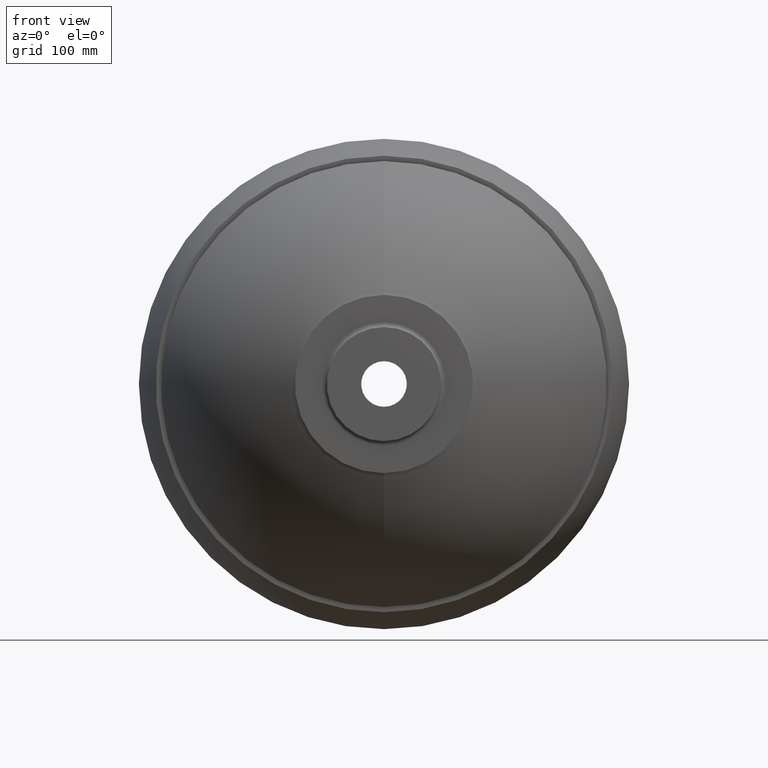
[diagram: clean part render]
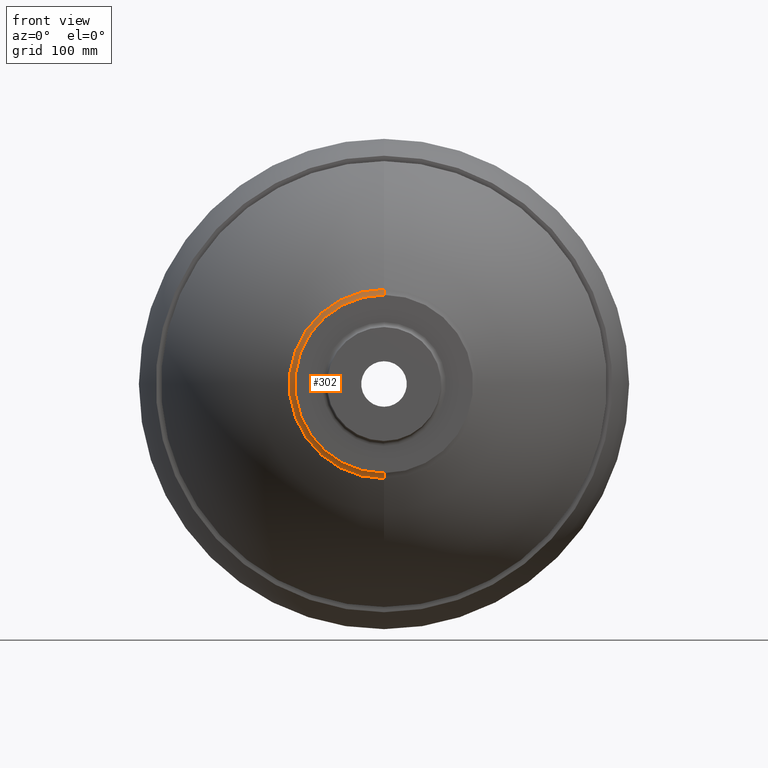
[diagram: same view with one face highlighted and labeled with its STEP entity id]
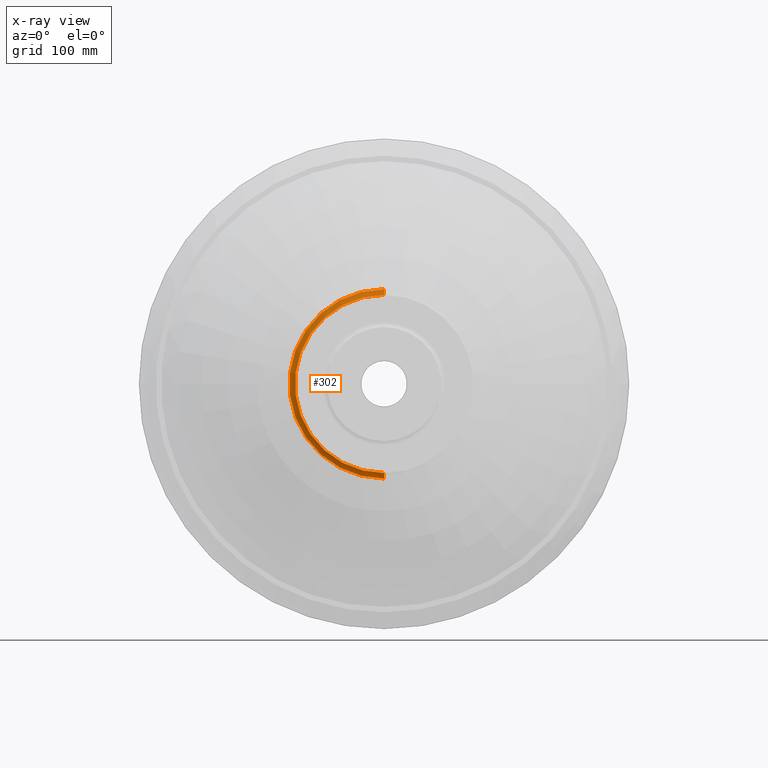
[diagram: x-ray of the same camera — body ghosted, the highlighted face saturated]
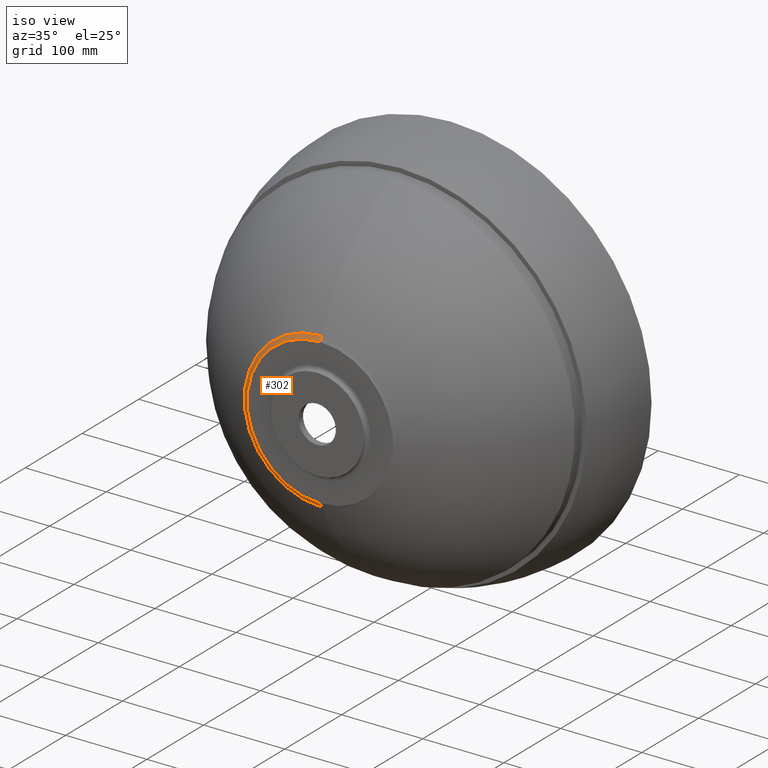
[diagram: same view with one face highlighted and labeled with its STEP entity id]
A machine part, front view. The second image highlights one B-rep face of the part: STEP entity #302.
The next image is the same camera in x-ray: the body ghosted, the highlighted face saturated — about 0% of this face is hidden behind the body in this view.
A second angle (iso view) of the same face is appended — the face is thin or edge-on in the first view.
In plain terms, the highlighted toroidal blend (fillet) surface has major radius 106.974 mm and minor (blend) radius 30 mm.
Its self-contained STEP definition (entity closure, byte-faithful):
#55 = VERTEX_POINT ( 'NONE', #528 ) ;
#75 = FACE_OUTER_BOUND ( 'NONE', #473, .T. ) ;
#76 = VERTEX_POINT ( 'NONE', #443 ) ;
#108 = EDGE_CURVE ( 'NONE', #196, #76, #142, .T. ) ;
#120 = DIRECTION ( 'NONE',  ( 0.0000000000000000000, 0.0000000000000000000, -1.000000000000000000 ) ) ;
#121 = DIRECTION ( 'NONE',  ( -0.0000000000000000000, -1.000000000000000000, -0.0000000000000000000 ) ) ;
#124 = CARTESIAN_POINT ( 'NONE',  ( 0.0000000000000000000, 8.000000000000062200, 0.0000000000000000000 ) ) ;
#142 = CIRCLE ( 'NONE', #160, 30.00000000000000000 ) ;
#145 = VERTEX_POINT ( 'NONE', #312 ) ;
#150 = EDGE_CURVE ( 'NONE', #145, #55, #388, .T. ) ;
#157 = ORIENTED_EDGE ( 'NONE', *, *, #150, .F. ) ;
#160 = AXIS2_PLACEMENT_3D ( 'NONE', #254, #402, #253 ) ;
#196 = VERTEX_POINT ( 'NONE', #492 ) ;
#207 = AXIS2_PLACEMENT_3D ( 'NONE', #124, #121, #120 ) ;
#232 = CARTESIAN_POINT ( 'NONE',  ( 0.0000000000000000000, -19.73605584822120900, 0.0000000000000000000 ) ) ;
#237 = CIRCLE ( 'NONE', #207, 95.54141989114369000 ) ;
#246 = TOROIDAL_SURFACE ( 'NONE', #259, 106.9743200474623600, 29.99999999999999600 ) ;
#253 = DIRECTION ( 'NONE',  ( -1.224646799147353000E-016, 0.0000000000000000000, -1.000000000000000000 ) ) ;
#254 = CARTESIAN_POINT ( 'NONE',  ( 1.310057586370893000E-014, -19.73605584822120900, 106.9743200474623600 ) ) ;
#259 = AXIS2_PLACEMENT_3D ( 'NONE', #232, #414, #523 ) ;
#260 = DIRECTION ( 'NONE',  ( 0.0000000000000000000, 0.0000000000000000000, 1.000000000000000000 ) ) ;
#302 = ADVANCED_FACE ( 'NONE', ( #75 ), #246, .F. ) ;
#312 = CARTESIAN_POINT ( 'NONE',  ( 0.0000000000000000000, 4.999999999999973400, -90.00000000000000000 ) ) ;
#323 = AXIS2_PLACEMENT_3D ( 'NONE', #328, #472, #260 ) ;
#328 = CARTESIAN_POINT ( 'NONE',  ( 0.0000000000000000000, -19.73605584822120900, -106.9743200474623600 ) ) ;
#373 = DIRECTION ( 'NONE',  ( 0.0000000000000000000, 0.0000000000000000000, -1.000000000000000000 ) ) ;
#388 = CIRCLE ( 'NONE', #323, 30.00000000000000000 ) ;
#391 = AXIS2_PLACEMENT_3D ( 'NONE', #522, #396, #373 ) ;
#396 = DIRECTION ( 'NONE',  ( -0.0000000000000000000, -1.000000000000000000, -0.0000000000000000000 ) ) ;
#400 = ORIENTED_EDGE ( 'NONE', *, *, #461, .T. ) ;
#402 = DIRECTION ( 'NONE',  ( 1.000000000000000000, 0.0000000000000000000, -1.224646799147353200E-016 ) ) ;
#414 = DIRECTION ( 'NONE',  ( -0.0000000000000000000, -1.000000000000000000, -0.0000000000000000000 ) ) ;
#443 = CARTESIAN_POINT ( 'NONE',  ( 1.170044940556824100E-014, 8.000000000000062200, 95.54141989114370400 ) ) ;
#461 = EDGE_CURVE ( 'NONE', #76, #55, #237, .T. ) ;
#472 = DIRECTION ( 'NONE',  ( -1.000000000000000000, 0.0000000000000000000, 0.0000000000000000000 ) ) ;
#473 = EDGE_LOOP ( 'NONE', ( #500, #556, #400, #157 ) ) ;
#492 = CARTESIAN_POINT ( 'NONE',  ( 1.136113529894720900E-014, 4.999999999999973400, 90.00000000000000000 ) ) ;
#493 = EDGE_CURVE ( 'NONE', #196, #145, #581, .T. ) ;
#500 = ORIENTED_EDGE ( 'NONE', *, *, #493, .F. ) ;
#522 = CARTESIAN_POINT ( 'NONE',  ( 0.0000000000000000000, 4.999999999999973400, 0.0000000000000000000 ) ) ;
#523 = DIRECTION ( 'NONE',  ( 0.0000000000000000000, 0.0000000000000000000, -1.000000000000000000 ) ) ;
#528 = CARTESIAN_POINT ( 'NONE',  ( 0.0000000000000000000, 8.000000000000062200, -95.54141989114370400 ) ) ;
#556 = ORIENTED_EDGE ( 'NONE', *, *, #108, .T. ) ;
#581 = CIRCLE ( 'NONE', #391, 90.00000000000000000 ) ;